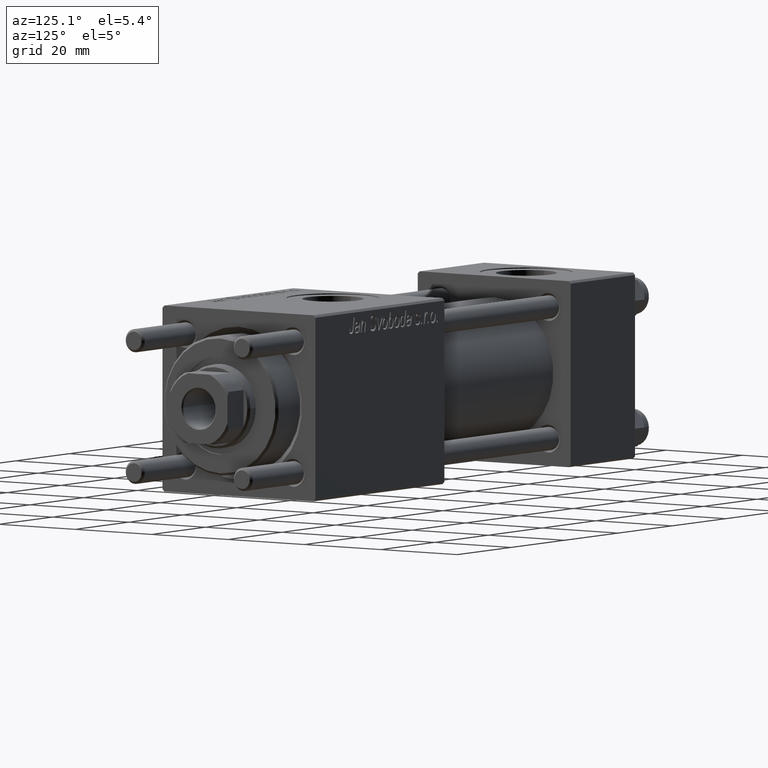
[diagram: clean part render]
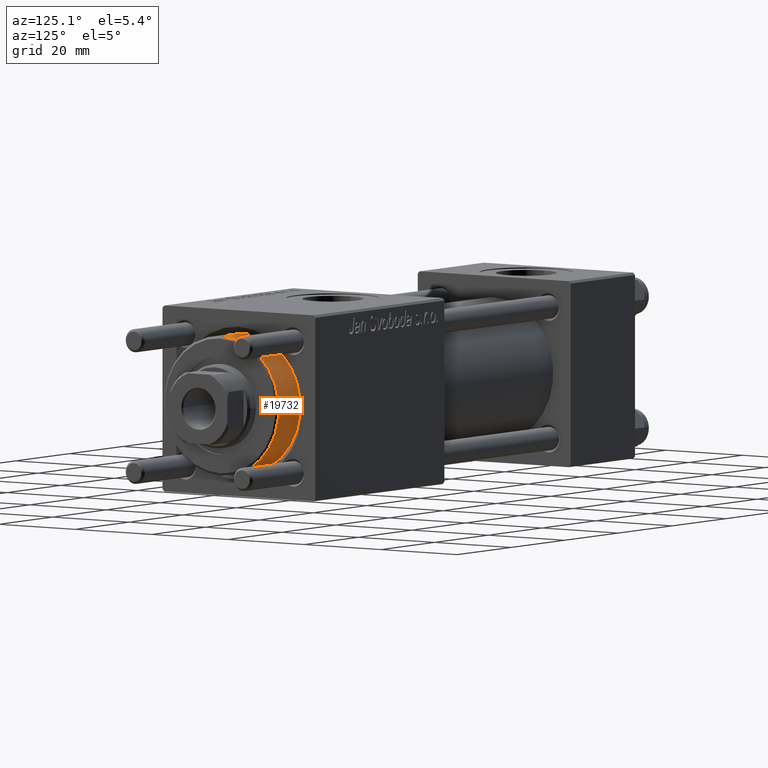
[diagram: same view with one face highlighted and labeled with its STEP entity id]
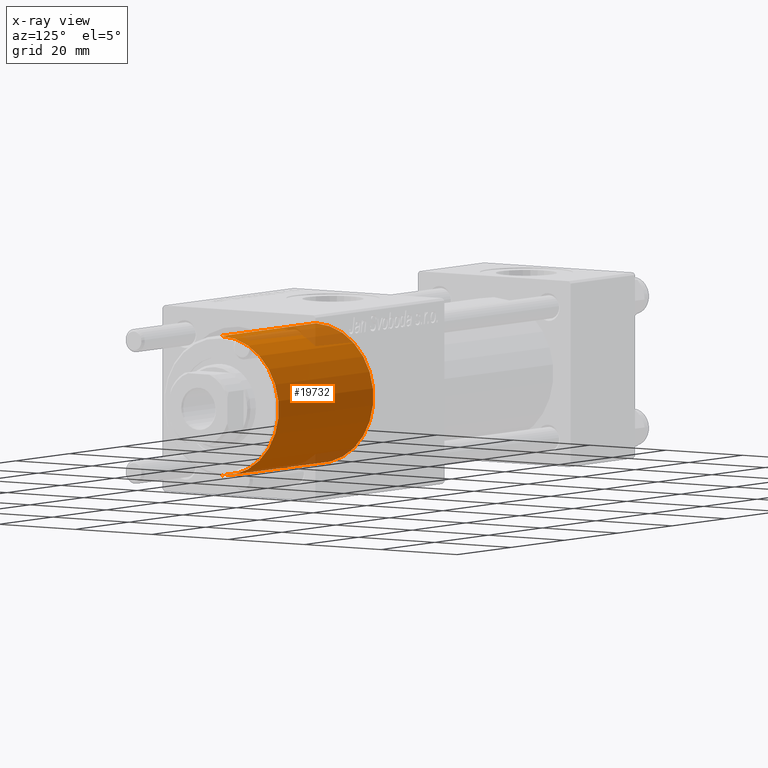
[diagram: x-ray of the same camera — body ghosted, the highlighted face saturated]
A machine part, auxiliary view. The second image highlights one B-rep face of the part: STEP entity #19732.
The next image is the same camera in x-ray: the body ghosted, the highlighted face saturated — about 12% of this face is hidden behind the body in this view.
In plain terms, the highlighted cylindrical surface (partial cylindrical patch) has radius 15 mm, axis along (-1, -0, 0).
Its self-contained STEP definition (entity closure, byte-faithful):
#2129 = DIRECTION ( 'NONE',  ( 1.000000000000000000, 0.000000000000000000, 0.000000000000000000 ) ) ;
#2211 = DIRECTION ( 'NONE',  ( 1.000000000000000000, 0.000000000000000000, 0.000000000000000000 ) ) ;
#3113 = EDGE_CURVE ( 'NONE', #36802, #39431, #51921, .T. ) ;
#5330 = CIRCLE ( 'NONE', #16356, 15.00000000000000000 ) ;
#6433 = CARTESIAN_POINT ( 'NONE',  ( 0.000000000000000000, 0.000000000000000000, 0.000000000000000000 ) ) ;
#6728 = CYLINDRICAL_SURFACE ( 'NONE', #38534, 15.00000000000000000 ) ;
#9184 = CARTESIAN_POINT ( 'NONE',  ( -15.00000000000000000, 0.000000000000000000, 0.000000000000000000 ) ) ;
#9754 = AXIS2_PLACEMENT_3D ( 'NONE', #27460, #14261, #2211 ) ;
#9896 = DIRECTION ( 'NONE',  ( 0.000000000000000000, 0.000000000000000000, 1.000000000000000000 ) ) ;
#11072 = ORIENTED_EDGE ( 'NONE', *, *, #13090, .T. ) ;
#12429 = CARTESIAN_POINT ( 'NONE',  ( 15.00000000000000000, 1.836970198721029589E-15, 28.69999999999999929 ) ) ;
#13090 = EDGE_CURVE ( 'NONE', #15975, #20730, #5330, .T. ) ;
#14261 = DIRECTION ( 'NONE',  ( 0.000000000000000000, 0.000000000000000000, -1.000000000000000000 ) ) ;
#14916 = VECTOR ( 'NONE', #56284, 1000.000000000000000 ) ;
#15901 = DIRECTION ( 'NONE',  ( -0.000000000000000000, -0.000000000000000000, -1.000000000000000000 ) ) ;
#15975 = VERTEX_POINT ( 'NONE', #37172 ) ;
#16356 = AXIS2_PLACEMENT_3D ( 'NONE', #6433, #9896, #2129 ) ;
#19732 = ADVANCED_FACE ( 'NONE', ( #19924 ), #6728, .T. ) ;
#19924 = FACE_OUTER_BOUND ( 'NONE', #21550, .T. ) ;
#20730 = VERTEX_POINT ( 'NONE', #9184 ) ;
#21550 = EDGE_LOOP ( 'NONE', ( #54063, #25550, #11072, #35457 ) ) ;
#22388 = VECTOR ( 'NONE', #53002, 1000.000000000000000 ) ;
#25550 = ORIENTED_EDGE ( 'NONE', *, *, #38989, .T. ) ;
#27460 = CARTESIAN_POINT ( 'NONE',  ( 0.000000000000000000, 0.000000000000000000, 35.19999999999999574 ) ) ;
#29385 = CARTESIAN_POINT ( 'NONE',  ( 0.000000000000000000, 0.000000000000000000, 28.69999999999999929 ) ) ;
#29924 = LINE ( 'NONE', #12429, #14916 ) ;
#33696 = CARTESIAN_POINT ( 'NONE',  ( -15.00000000000000000, 0.000000000000000000, 35.19999999999999574 ) ) ;
#35457 = ORIENTED_EDGE ( 'NONE', *, *, #47829, .F. ) ;
#36802 = VERTEX_POINT ( 'NONE', #33696 ) ;
#37172 = CARTESIAN_POINT ( 'NONE',  ( 15.00000000000000000, 1.836970198721029589E-15, 0.000000000000000000 ) ) ;
#38534 = AXIS2_PLACEMENT_3D ( 'NONE', #29385, #15901, #51177 ) ;
#38973 = LINE ( 'NONE', #52723, #22388 ) ;
#38989 = EDGE_CURVE ( 'NONE', #39431, #15975, #29924, .T. ) ;
#39431 = VERTEX_POINT ( 'NONE', #45552 ) ;
#45552 = CARTESIAN_POINT ( 'NONE',  ( 15.00000000000000000, 1.836970198721029589E-15, 35.19999999999999574 ) ) ;
#47829 = EDGE_CURVE ( 'NONE', #36802, #20730, #38973, .T. ) ;
#51177 = DIRECTION ( 'NONE',  ( -1.000000000000000000, 0.000000000000000000, 0.000000000000000000 ) ) ;
#51921 = CIRCLE ( 'NONE', #9754, 15.00000000000000000 ) ;
#52723 = CARTESIAN_POINT ( 'NONE',  ( -15.00000000000000000, 0.000000000000000000, 28.69999999999999929 ) ) ;
#53002 = DIRECTION ( 'NONE',  ( -0.000000000000000000, -0.000000000000000000, -1.000000000000000000 ) ) ;
#54063 = ORIENTED_EDGE ( 'NONE', *, *, #3113, .T. ) ;
#56284 = DIRECTION ( 'NONE',  ( -0.000000000000000000, -0.000000000000000000, -1.000000000000000000 ) ) ;